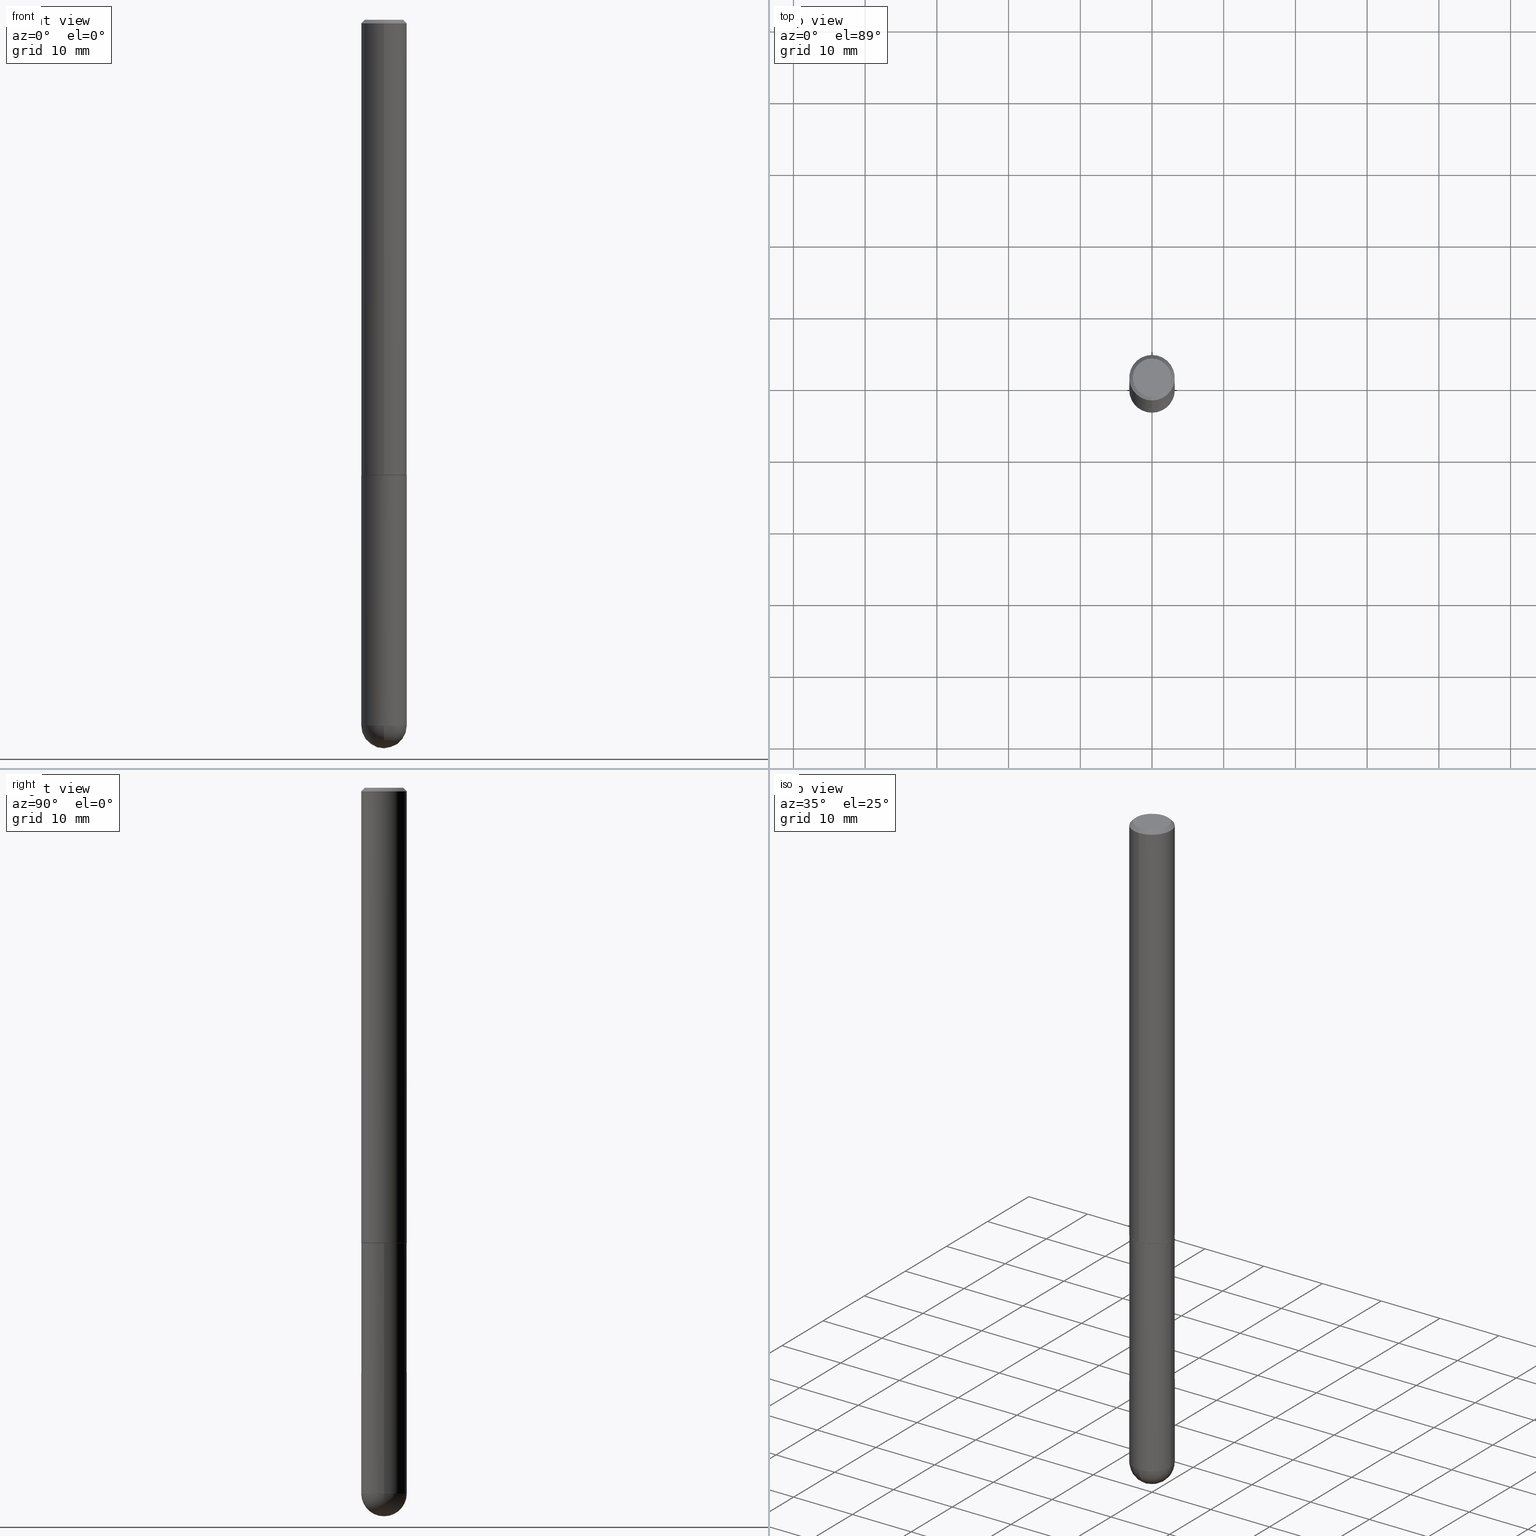
[diagram: canonical four-view strip — front | top / right | iso, engineering-drawing reading convention]
A machine part, canonical four-view strip (front | top / right | iso — engineering-drawing reading convention). The complete STEP part file that produces these views, byte-faithful:
ISO-10303-21;
HEADER;
FILE_DESCRIPTION (( 'STEP AP203' ),
    '1' );
FILE_NAME ('31920.STEP',
    '2024-02-21T17:13:25',
    ( '' ),
    ( '' ),
    'SwSTEP 2.0',
    'SolidWorks 2023',
    '' );
FILE_SCHEMA (( 'CONFIG_CONTROL_DESIGN' ));
ENDSEC;

DATA;
#1 = EDGE_CURVE ( 'NONE', #400, #278, #349, .T. ) ;
#2 = DIRECTION ( 'NONE',  ( 5.024295867789349022E-15, 0.7071067811867310926, 0.7071067811863640529 ) ) ;
#3 = DIRECTION ( 'NONE',  ( 6.982962677686265922E-15, 1.000000000000000000, -4.370956789862814839E-15 ) ) ;
#4 = CARTESIAN_POINT ( 'NONE',  ( 8.846257060213868511E-16, 0.1239999999999912700, -2.500000000000000444 ) ) ;
#5 = AXIS2_PLACEMENT_3D ( 'NONE', #125, #90, #189 ) ;
#6 = DIRECTION ( 'NONE',  ( -2.445237604041377810E-29, 3.491812433472216822E-15, 1.000000000000000000 ) ) ;
#7 = CC_DESIGN_PERSON_AND_ORGANIZATION_ASSIGNMENT ( #341, #151, ( #60 ) ) ;
#8 = CARTESIAN_POINT ( 'NONE',  ( 0.1250000000000000000, -8.728703347107833388E-16, 6.095220969744919741E-30 ) ) ;
#9 = DIRECTION ( 'NONE',  ( 1.000000000000000000, -6.982962677686266711E-15, 4.876176775795935793E-29 ) ) ;
#10 = CIRCLE ( 'NONE', #123, 0.1250000000000000000 ) ;
#11 = LOCAL_TIME ( 12, 13, 25.00000000000000000, #245 ) ;
#12 = CARTESIAN_POINT ( 'NONE',  ( 0.1250000000000000000, -9.601573681818648281E-15, -2.500000000000000000 ) ) ;
#13 = DIRECTION ( 'NONE',  ( -2.445237604041377810E-29, 3.491812433472216822E-15, 1.000000000000000000 ) ) ;
#14 = ADVANCED_FACE ( 'NONE', ( #306 ), #38, .T. ) ;
#15 = EDGE_LOOP ( 'NONE', ( #204, #324, #309, #332 ) ) ;
#16 = CIRCLE ( 'NONE', #329, 0.1250000000000003053 ) ;
#17 = AXIS2_PLACEMENT_3D ( 'NONE', #79, #176, #203 ) ;
#18 = ORIENTED_EDGE ( 'NONE', *, *, #161, .F. ) ;
#19 = LINE ( 'NONE', #86, #285 ) ;
#20 = ORIENTED_EDGE ( 'NONE', *, *, #348, .F. ) ;
#21 = CARTESIAN_POINT ( 'NONE',  ( -8.881784197000325412E-16, -0.1250000000000138500, -3.874999999999999556 ) ) ;
#22 = APPROVAL ( #253, 'UNSPECIFIED' ) ;
#23 = ORIENTED_EDGE ( 'NONE', *, *, #30, .T. ) ;
#24 = AXIS2_PLACEMENT_3D ( 'NONE', #246, #377, #213 ) ;
#25 = APPROVAL_PERSON_ORGANIZATION ( #178, #317, #33 ) ;
#26 = CALENDAR_DATE ( 2024, 21, 2 ) ;
#27 = ORIENTED_EDGE ( 'NONE', *, *, #320, .F. ) ;
#28 = ADVANCED_FACE ( 'NONE', ( #62 ), #52, .T. ) ;
#29 = ORIENTED_EDGE ( 'NONE', *, *, #161, .T. ) ;
#30 = EDGE_CURVE ( 'NONE', #54, #400, #297, .T. ) ;
#31 = DIRECTION ( 'NONE',  ( 1.000000000000000000, -6.982962677686262766E-15, 0.000000000000000000 ) ) ;
#32 = CC_DESIGN_PERSON_AND_ORGANIZATION_ASSIGNMENT ( #142, #267, ( #397 ) ) ;
#33 = APPROVAL_ROLE ( '' ) ;
#34 = CONICAL_SURFACE ( 'NONE', #139, 0.1239999999999999991, 0.7853981633977044075 ) ;
#35 = DIRECTION ( 'NONE',  ( -2.445468806185136597E-29, 3.491481338843145583E-15, 1.000000000000000000 ) ) ;
#36 = APPROVAL_STATUS ( 'not_yet_approved' ) ;
#37 = CARTESIAN_POINT ( 'NONE',  ( 9.456100236134031739E-29, -1.443245368101796326E-14, -4.000000000000000888 ) ) ;
#38 = SPHERICAL_SURFACE ( 'NONE', #99, 0.1250000000000001943 ) ;
#39 = CARTESIAN_POINT ( 'NONE',  ( -8.575622497214408537E-16, -0.1250000000000000555, -0.01999999999999959102 ) ) ;
#40 = CIRCLE ( 'NONE', #173, 0.1250000000000000000 ) ;
#41 = EDGE_CURVE ( 'NONE', #273, #334, #110, .T. ) ;
#42 = LINE ( 'NONE', #39, #402 ) ;
#43 = CARTESIAN_POINT ( 'NONE',  ( 6.113672015462842613E-29, -8.728703347107864943E-15, -2.500000000000000000 ) ) ;
#44 = FACE_OUTER_BOUND ( 'NONE', #98, .T. ) ;
#45 = AXIS2_PLACEMENT_3D ( 'NONE', #338, #35, #127 ) ;
#46 = APPROVAL_PERSON_ORGANIZATION ( #380, #22, #304 ) ;
#47 = CARTESIAN_POINT ( 'NONE',  ( 6.110648772499403782E-29, -8.726039271247070194E-15, -2.499000000000000110 ) ) ;
#48 = DIRECTION ( 'NONE',  ( 2.445237604041377810E-29, -3.491812433472216822E-15, -1.000000000000000000 ) ) ;
#49 = EDGE_LOOP ( 'NONE', ( #210, #370 ) ) ;
#50 = EDGE_CURVE ( 'NONE', #291, #58, #379, .T. ) ;
#51 = ORIENTED_EDGE ( 'NONE', *, *, #315, .F. ) ;
#52 = CONICAL_SURFACE ( 'NONE', #196, 0.1239999999999999991, 0.7853981633977044075 ) ;
#53 =( NAMED_UNIT ( * ) SI_UNIT ( $, .STERADIAN. ) SOLID_ANGLE_UNIT ( ) );
#54 = VERTEX_POINT ( 'NONE', #160 ) ;
#55 = FACE_OUTER_BOUND ( 'NONE', #179, .T. ) ;
#56 = ORIENTED_EDGE ( 'NONE', *, *, #200, .F. ) ;
#57 = DIRECTION ( 'NONE',  ( 2.445237604041377530E-29, -3.491812433472216822E-15, -1.000000000000000000 ) ) ;
#58 = VERTEX_POINT ( 'NONE', #381 ) ;
#59 = CIRCLE ( 'NONE', #231, 0.1250000000000000000 ) ;
#60 = PRODUCT_DEFINITION_FORMATION_WITH_SPECIFIED_SOURCE ( 'ANY', '', #397, .NOT_KNOWN. ) ;
#61 = PERSON_AND_ORGANIZATION_ROLE ( 'creator' ) ;
#62 = FACE_OUTER_BOUND ( 'NONE', #172, .T. ) ;
#63 = DIRECTION ( 'NONE',  ( 2.445237604041377810E-29, -3.491812433472216822E-15, -1.000000000000000000 ) ) ;
#64 = DIMENSIONAL_EXPONENTS ( 1.000000000000000000, 0.000000000000000000, 0.000000000000000000, 0.000000000000000000, 0.000000000000000000, 0.000000000000000000, 0.000000000000000000 ) ;
#65 = PERSON_AND_ORGANIZATION ( #212, #249 ) ;
#66 = DIRECTION ( 'NONE',  ( -6.982962677686265922E-15, -1.000000000000000000, 4.406206441393973340E-15 ) ) ;
#67 = APPROVAL_STATUS ( 'not_yet_approved' ) ;
#68 = AXIS2_PLACEMENT_3D ( 'NONE', #257, #229, #386 ) ;
#69 = CARTESIAN_POINT ( 'NONE',  ( 6.113094010103445506E-29, -8.729531083680542845E-15, -2.500000000000000000 ) ) ;
#70 = LINE ( 'NONE', #372, #387 ) ;
#71 = CARTESIAN_POINT ( 'NONE',  ( 9.145071846053518065E-29, -1.400367255615723938E-14, -3.875000000000000000 ) ) ;
#72 = ADVANCED_FACE ( 'NONE', ( #102 ), #392, .T. ) ;
#73 = CARTESIAN_POINT ( 'NONE',  ( -8.658873720330357934E-16, -0.1240000000000087144, -2.499999999999999556 ) ) ;
#74 = CLOSED_SHELL ( 'NONE', ( #281, #141, #14, #368, #259 ) ) ;
#75 = DIRECTION ( 'NONE',  ( -6.982962677686265922E-15, -1.000000000000000000, 4.370956789862810105E-15 ) ) ;
#76 = LINE ( 'NONE', #73, #235 ) ;
#77 = DIRECTION ( 'NONE',  ( -2.445468806185136877E-29, 3.491481338843145188E-15, 1.000000000000000000 ) ) ;
#78 = AXIS2_PLACEMENT_3D ( 'NONE', #219, #122, #31 ) ;
#79 = CARTESIAN_POINT ( 'NONE',  ( 8.728703347108443769E-16, 0.1249999999999912709, -2.500000000000000444 ) ) ;
#80 = ORIENTED_EDGE ( 'NONE', *, *, #383, .F. ) ;
#81 = CARTESIAN_POINT ( 'NONE',  ( 0.000000000000000000, 0.000000000000000000, 0.000000000000000000 ) ) ;
#82 = EDGE_LOOP ( 'NONE', ( #298, #359, #395, #51, #87 ) ) ;
#83 = VERTEX_POINT ( 'NONE', #37 ) ;
#84 = AXIS2_PLACEMENT_3D ( 'NONE', #190, #310, #279 ) ;
#85 = CC_DESIGN_APPROVAL ( #317, ( #331 ) ) ;
#86 = CARTESIAN_POINT ( 'NONE',  ( 8.881784197001262184E-16, 0.1250000000000001388, -4.364765541840276451E-16 ) ) ;
#87 = ORIENTED_EDGE ( 'NONE', *, *, #311, .T. ) ;
#88 = CARTESIAN_POINT ( 'NONE',  ( 4.890475208082762101E-31, -6.983624866944442273E-17, -0.02000000000000002470 ) ) ;
#89 = EDGE_LOOP ( 'NONE', ( #406, #186, #27, #266 ) ) ;
#90 = DIRECTION ( 'NONE',  ( -2.445468806185136597E-29, 3.491481338843145583E-15, 1.000000000000000000 ) ) ;
#91 = SHAPE_DEFINITION_REPRESENTATION ( #328, #382 ) ;
#92 = EDGE_CURVE ( 'NONE', #58, #143, #187, .T. ) ;
#93 = APPLICATION_CONTEXT ( 'configuration controlled 3d designs of mechanical parts and assemblies' ) ;
#94 = ORIENTED_EDGE ( 'NONE', *, *, #250, .F. ) ;
#95 = PERSON_AND_ORGANIZATION_ROLE ( 'design_supplier' ) ;
#96 = DIRECTION ( 'NONE',  ( -2.445237604041377810E-29, 3.491812433472216822E-15, 1.000000000000000000 ) ) ;
#97 = CALENDAR_DATE ( 2024, 21, 2 ) ;
#98 = EDGE_LOOP ( 'NONE', ( #177, #23, #175, #112, #94 ) ) ;
#99 = AXIS2_PLACEMENT_3D ( 'NONE', #248, #409, #3 ) ;
#100 = APPROVAL_DATE_TIME ( #119, #22 ) ;
#101 = LOCAL_TIME ( 12, 13, 25.00000000000000000, #221 ) ;
#102 = FACE_OUTER_BOUND ( 'NONE', #327, .T. ) ;
#103 = FACE_OUTER_BOUND ( 'NONE', #82, .T. ) ;
#104 = DIRECTION ( 'NONE',  ( -6.982962677686265922E-15, -1.000000000000000000, 4.406206441393973340E-15 ) ) ;
#105 = CYLINDRICAL_SURFACE ( 'NONE', #68, 0.1250000000000000000 ) ;
#106 = CIRCLE ( 'NONE', #280, 0.1050000000000000239 ) ;
#107 = DIRECTION ( 'NONE',  ( -4.851104656540957964E-15, -0.7071067811865491270, -0.7071067811865459074 ) ) ;
#108 = ADVANCED_FACE ( 'NONE', ( #159 ), #157, .T. ) ;
#109 = DIRECTION ( 'NONE',  ( 1.000000000000000000, -6.982962677686270655E-15, 0.000000000000000000 ) ) ;
#110 = CIRCLE ( 'NONE', #5, 0.1250000000000000000 ) ;
#111 = CONICAL_SURFACE ( 'NONE', #237, 0.1250000000000000000, 0.7853981633974471688 ) ;
#112 = ORIENTED_EDGE ( 'NONE', *, *, #315, .T. ) ;
#113 = EDGE_CURVE ( 'NONE', #54, #334, #70, .T. ) ;
#114 = DIRECTION ( 'NONE',  ( 6.982962677686265922E-15, 1.000000000000000000, -3.491812433472216822E-15 ) ) ;
#115 = ORIENTED_EDGE ( 'NONE', *, *, #325, .F. ) ;
#116 = ORIENTED_EDGE ( 'NONE', *, *, #130, .F. ) ;
#117 = DIRECTION ( 'NONE',  ( 0.000000000000000000, 0.000000000000000000, 1.000000000000000000 ) ) ;
#118 = VERTEX_POINT ( 'NONE', #183 ) ;
#119 = DATE_AND_TIME ( #339, #101 ) ;
#120 = DIRECTION ( 'NONE',  ( -2.445237604041377810E-29, 3.491812433472216822E-15, 1.000000000000000000 ) ) ;
#121 = PERSON_AND_ORGANIZATION ( #212, #249 ) ;
#122 = DIRECTION ( 'NONE',  ( -2.445468806185136597E-29, 3.491481338843145583E-15, 1.000000000000000000 ) ) ;
#123 = AXIS2_PLACEMENT_3D ( 'NONE', #43, #169, #109 ) ;
#124 = CARTESIAN_POINT ( 'NONE',  ( 4.890475208082762101E-31, -6.983624866944442273E-17, -0.02000000000000002470 ) ) ;
#125 = CARTESIAN_POINT ( 'NONE',  ( 6.113672015462842613E-29, -8.728703347107864943E-15, -2.500000000000000000 ) ) ;
#126 = EDGE_CURVE ( 'NONE', #272, #118, #168, .T. ) ;
#127 = DIRECTION ( 'NONE',  ( 1.000000000000000000, -6.982962677686262766E-15, 0.000000000000000000 ) ) ;
#128 = CC_DESIGN_SECURITY_CLASSIFICATION ( #331, ( #60 ) ) ;
#129 = CARTESIAN_POINT ( 'NONE',  ( 4.890475208082762101E-31, -6.983624866944442273E-17, -0.02000000000000002470 ) ) ;
#130 = EDGE_CURVE ( 'NONE', #242, #154, #40, .T. ) ;
#131 = CARTESIAN_POINT ( 'NONE',  ( 0.1250000000000000000, -1.200196710227331272E-14, -3.875000000000000000 ) ) ;
#132 = DIRECTION ( 'NONE',  ( -7.105427357601000281E-15, -1.000000000000000000, 0.000000000000000000 ) ) ;
#133 = CARTESIAN_POINT ( 'NONE',  ( -8.575622497214408537E-16, -0.1250000000000000555, -0.01999999999999959102 ) ) ;
#134 = EDGE_CURVE ( 'NONE', #252, #54, #307, .T. ) ;
#135 = CYLINDRICAL_SURFACE ( 'NONE', #255, 0.1250000000000000000 ) ;
#136 = DIRECTION ( 'NONE',  ( 6.982962677686265922E-15, 1.000000000000000000, -3.483106191921935554E-15 ) ) ;
#137 = LENGTH_MEASURE_WITH_UNIT ( LENGTH_MEASURE( 0.02539999999999999897 ), #147 );
#138 = ORIENTED_EDGE ( 'NONE', *, *, #305, .T. ) ;
#139 = AXIS2_PLACEMENT_3D ( 'NONE', #197, #163, #104 ) ;
#140 = CC_DESIGN_APPROVAL ( #22, ( #60 ) ) ;
#141 = ADVANCED_FACE ( 'NONE', ( #302 ), #385, .T. ) ;
#142 = PERSON_AND_ORGANIZATION ( #212, #249 ) ;
#143 = VERTEX_POINT ( 'NONE', #390 ) ;
#144 = CC_DESIGN_DATE_AND_TIME_ASSIGNMENT ( #277, #300, ( #192 ) ) ;
#145 = DIRECTION ( 'NONE',  ( -6.982962677686266711E-15, -1.000000000000000000, 3.491812433472217217E-15 ) ) ;
#146 = ORIENTED_EDGE ( 'NONE', *, *, #41, .T. ) ;
#147 =( LENGTH_UNIT ( ) NAMED_UNIT ( * ) SI_UNIT ( $, .METRE. ) );
#148 = EDGE_LOOP ( 'NONE', ( #20, #222, #170, #18 ) ) ;
#149 = AXIS2_PLACEMENT_3D ( 'NONE', #227, #63, #152 ) ;
#150 = ORIENTED_EDGE ( 'NONE', *, *, #299, .F. ) ;
#151 = PERSON_AND_ORGANIZATION_ROLE ( 'creator' ) ;
#152 = DIRECTION ( 'NONE',  ( 6.982962677686265922E-15, 1.000000000000000000, -3.483106191921935554E-15 ) ) ;
#153 = MANIFOLD_SOLID_BREP ( 'Body-Move/Copy2[2]', #394 ) ;
#154 = VERTEX_POINT ( 'NONE', #165 ) ;
#155 = CIRCLE ( 'NONE', #205, 0.1239999999999999991 ) ;
#156 = APPROVAL_DATE_TIME ( #158, #317 ) ;
#157 = CYLINDRICAL_SURFACE ( 'NONE', #261, 0.1250000000000001388 ) ;
#158 = DATE_AND_TIME ( #296, #376 ) ;
#159 = FACE_OUTER_BOUND ( 'NONE', #148, .T. ) ;
#160 = CARTESIAN_POINT ( 'NONE',  ( -0.1250000000000000000, -1.024091834786240415E-14, -3.875000000000000000 ) ) ;
#161 = EDGE_CURVE ( 'NONE', #154, #242, #276, .T. ) ;
#162 = VECTOR ( 'NONE', #77, 39.37007874015748143 ) ;
#163 = DIRECTION ( 'NONE',  ( -2.445237604041377810E-29, 3.491812433472216822E-15, 1.000000000000000000 ) ) ;
#164 = FACE_OUTER_BOUND ( 'NONE', #89, .T. ) ;
#165 = CARTESIAN_POINT ( 'NONE',  ( 8.728703347107837333E-16, 0.1249999999999999306, -0.02000000000000046185 ) ) ;
#166 = MANIFOLD_SOLID_BREP ( 'Body-Move/Copy2[1]', #74 ) ;
#167 = DIRECTION ( 'NONE',  ( -1.000000000000000000, 6.982962677686265922E-15, -4.883557194083112901E-29 ) ) ;
#168 = CIRCLE ( 'NONE', #84, 0.1050000000000000239 ) ;
#169 = DIRECTION ( 'NONE',  ( -2.445468806185136597E-29, 3.491481338843145583E-15, 1.000000000000000000 ) ) ;
#170 = ORIENTED_EDGE ( 'NONE', *, *, #383, .T. ) ;
#171 = FACE_OUTER_BOUND ( 'NONE', #241, .T. ) ;
#172 = EDGE_LOOP ( 'NONE', ( #270, #293, #138, #337 ) ) ;
#173 = AXIS2_PLACEMENT_3D ( 'NONE', #124, #120, #274 ) ;
#174 = FACE_OUTER_BOUND ( 'NONE', #268, .T. ) ;
#175 = ORIENTED_EDGE ( 'NONE', *, *, #1, .T. ) ;
#176 = DIRECTION ( 'NONE',  ( 2.438088387897960049E-29, -3.491481338843145188E-15, -1.000000000000000000 ) ) ;
#177 = ORIENTED_EDGE ( 'NONE', *, *, #113, .F. ) ;
#178 = PERSON_AND_ORGANIZATION ( #212, #249 ) ;
#179 = EDGE_LOOP ( 'NONE', ( #146, #202 ) ) ;
#180 = AXIS2_PLACEMENT_3D ( 'NONE', #322, #6, #347 ) ;
#181 = AXIS2_PLACEMENT_3D ( 'NONE', #396, #13, #145 ) ;
#182 = APPLICATION_PROTOCOL_DEFINITION ( 'international standard', 'config_control_design', 1994, #93 ) ;
#183 = CARTESIAN_POINT ( 'NONE',  ( -7.889572697437259167E-16, -0.1050000000000000239, 3.624065579605349599E-16 ) ) ;
#184 = DIRECTION ( 'NONE',  ( -6.982962677686265922E-15, -1.000000000000000000, 4.370956789862810105E-15 ) ) ;
#185 = COORDINATED_UNIVERSAL_TIME_OFFSET ( 5, 0, .BEHIND. ) ;
#186 = ORIENTED_EDGE ( 'NONE', *, *, #50, .T. ) ;
#187 = CIRCLE ( 'NONE', #214, 0.1250000000000003053 ) ;
#188 = DATE_AND_TIME ( #216, #206 ) ;
#189 = DIRECTION ( 'NONE',  ( 1.000000000000000000, -6.982962677686270655E-15, 0.000000000000000000 ) ) ;
#190 = CARTESIAN_POINT ( 'NONE',  ( 1.035251872517619265E-46, -1.478345234940713000E-32, -4.233747554047924360E-18 ) ) ;
#191 = DIRECTION ( 'NONE',  ( -2.445237604041377530E-29, 3.491812433472216822E-15, 1.000000000000000000 ) ) ;
#192 = PRODUCT_DEFINITION ( 'UNKNOWN', '', #60, #211 ) ;
#193 = CARTESIAN_POINT ( 'NONE',  ( 1.035251872517619265E-46, -1.478345234940713000E-32, -4.233747554047924360E-18 ) ) ;
#194 = CARTESIAN_POINT ( 'NONE',  ( 6.113094010103445506E-29, -8.729531083680542845E-15, -2.500000000000000000 ) ) ;
#195 = DIRECTION ( 'NONE',  ( -4.937700262165812586E-15, -0.7071067811867262076, 0.7071067811863689379 ) ) ;
#196 = AXIS2_PLACEMENT_3D ( 'NONE', #69, #251, #66 ) ;
#197 = CARTESIAN_POINT ( 'NONE',  ( 6.113094010103445506E-29, -8.729531083680542845E-15, -2.500000000000000000 ) ) ;
#198 = LOCAL_TIME ( 12, 13, 25.00000000000000000, #405 ) ;
#199 = PLANE ( 'NONE',  #313 ) ;
#200 = EDGE_CURVE ( 'NONE', #118, #272, #106, .T. ) ;
#201 = DIRECTION ( 'NONE',  ( 1.000000000000000000, 0.000000000000000000, 0.000000000000000000 ) ) ;
#202 = ORIENTED_EDGE ( 'NONE', *, *, #250, .T. ) ;
#203 = DIRECTION ( 'NONE',  ( -1.000000000000000000, 6.982962677686265922E-15, -4.876176775795935793E-29 ) ) ;
#204 = ORIENTED_EDGE ( 'NONE', *, *, #316, .F. ) ;
#205 = AXIS2_PLACEMENT_3D ( 'NONE', #194, #364, #326 ) ;
#206 = LOCAL_TIME ( 12, 13, 25.00000000000000000, #185 ) ;
#207 = CARTESIAN_POINT ( 'NONE',  ( 8.728703347107837333E-16, 0.1249999999999999306, -0.02000000000000046185 ) ) ;
#208 = EDGE_LOOP ( 'NONE', ( #240, #375, #398, #404 ) ) ;
#209 = DIRECTION ( 'NONE',  ( 6.982962677686265133E-15, 1.000000000000000000, 0.000000000000000000 ) ) ;
#210 = ORIENTED_EDGE ( 'NONE', *, *, #126, .T. ) ;
#211 = DESIGN_CONTEXT ( 'detailed design', #93, 'design' ) ;
#212 = PERSON ( 'UNSPECIFIED', 'UNSPECIFIED', 'UNSPECIFIED', ('UNSPECIFIED'), ('UNSPECIFIED'), ('UNSPECIFIED') ) ;
#213 = DIRECTION ( 'NONE',  ( 1.000000000000000000, -6.982962677686262766E-15, 0.000000000000000000 ) ) ;
#214 = AXIS2_PLACEMENT_3D ( 'NONE', #340, #96, #184 ) ;
#215 =( GEOMETRIC_REPRESENTATION_CONTEXT ( 3 ) GLOBAL_UNCERTAINTY_ASSIGNED_CONTEXT ( ( #218 ) ) GLOBAL_UNIT_ASSIGNED_CONTEXT ( ( #399, #271, #53 ) ) REPRESENTATION_CONTEXT ( 'NONE', 'WORKASPACE' ) );
#216 = CALENDAR_DATE ( 2024, 21, 2 ) ;
#217 = ORIENTED_EDGE ( 'NONE', *, *, #238, .T. ) ;
#218 = UNCERTAINTY_MEASURE_WITH_UNIT (LENGTH_MEASURE( 1.000000000000000082E-05 ), #399, 'distance_accuracy_value', 'NONE');
#219 = CARTESIAN_POINT ( 'NONE',  ( 9.476191623967404313E-29, -1.352949018801718908E-14, -3.875000000000000000 ) ) ;
#220 = CC_DESIGN_PERSON_AND_ORGANIZATION_ASSIGNMENT ( #378, #61, ( #192 ) ) ;
#221 = COORDINATED_UNIVERSAL_TIME_OFFSET ( 5, 0, .BEHIND. ) ;
#222 = ORIENTED_EDGE ( 'NONE', *, *, #92, .T. ) ;
#223 = VECTOR ( 'NONE', #333, 39.37007874015748143 ) ;
#224 = AXIS2_PLACEMENT_3D ( 'NONE', #236, #287, #209 ) ;
#225 = AXIS2_PLACEMENT_3D ( 'NONE', #81, #117, #201 ) ;
#226 = APPROVAL_DATE_TIME ( #188, #362 ) ;
#227 = CARTESIAN_POINT ( 'NONE',  ( 4.890475208082762101E-31, -6.983624866944442273E-17, -0.02000000000000002470 ) ) ;
#228 = FACE_OUTER_BOUND ( 'NONE', #336, .T. ) ;
#229 = DIRECTION ( 'NONE',  ( -2.445468806185136597E-29, 3.491481338843145583E-15, 1.000000000000000000 ) ) ;
#230 = ADVANCED_FACE ( 'NONE', ( #228 ), #346, .F. ) ;
#231 = AXIS2_PLACEMENT_3D ( 'NONE', #283, #321, #384 ) ;
#232 = CARTESIAN_POINT ( 'NONE',  ( 9.145071846053518065E-29, -1.400367255615723938E-14, -3.875000000000000000 ) ) ;
#233 = CARTESIAN_POINT ( 'NONE',  ( 8.728703347108770161E-16, 0.1249999999999863443, -3.875000000000000444 ) ) ;
#234 = DIRECTION ( 'NONE',  ( -2.445468806185136597E-29, 3.491481338843145583E-15, 1.000000000000000000 ) ) ;
#235 = VECTOR ( 'NONE', #195, 39.37007874015748143 ) ;
#236 = CARTESIAN_POINT ( 'NONE',  ( 9.145071846053518065E-29, -1.400367255615723938E-14, -3.875000000000000000 ) ) ;
#237 = AXIS2_PLACEMENT_3D ( 'NONE', #88, #48, #136 ) ;
#238 = EDGE_CURVE ( 'NONE', #118, #242, #42, .T. ) ;
#239 = ORIENTED_EDGE ( 'NONE', *, *, #126, .F. ) ;
#240 = ORIENTED_EDGE ( 'NONE', *, *, #351, .F. ) ;
#241 = EDGE_LOOP ( 'NONE', ( #56, #217, #357, #289 ) ) ;
#242 = VERTEX_POINT ( 'NONE', #133 ) ;
#243 = CIRCLE ( 'NONE', #264, 0.1250000000000001943 ) ;
#244 = ORIENTED_EDGE ( 'NONE', *, *, #238, .F. ) ;
#245 = COORDINATED_UNIVERSAL_TIME_OFFSET ( 5, 0, .BEHIND. ) ;
#246 = CARTESIAN_POINT ( 'NONE',  ( 9.476191623967404313E-29, -1.352949018801718908E-14, -3.875000000000000000 ) ) ;
#247 = APPROVAL_ROLE ( '' ) ;
#248 = CARTESIAN_POINT ( 'NONE',  ( 9.145071846053518065E-29, -1.400367255615723938E-14, -3.875000000000000000 ) ) ;
#249 = ORGANIZATION ( 'UNSPECIFIED', 'UNSPECIFIED', '' ) ;
#250 = EDGE_CURVE ( 'NONE', #334, #273, #10, .T. ) ;
#251 = DIRECTION ( 'NONE',  ( -2.445237604041377810E-29, 3.491812433472216822E-15, 1.000000000000000000 ) ) ;
#252 = VERTEX_POINT ( 'NONE', #233 ) ;
#253 = APPROVAL_STATUS ( 'not_yet_approved' ) ;
#254 = CARTESIAN_POINT ( 'NONE',  ( 8.810729923425852623E-16, 0.1239999999999912700, -2.500000000000000444 ) ) ;
#255 = AXIS2_PLACEMENT_3D ( 'NONE', #282, #234, #9 ) ;
#256 = CARTESIAN_POINT ( 'NONE',  ( 6.113094010103445506E-29, -8.729531083680542845E-15, -2.500000000000000000 ) ) ;
#257 = CARTESIAN_POINT ( 'NONE',  ( 0.000000000000000000, 0.000000000000000000, 0.000000000000000000 ) ) ;
#258 = ADVANCED_FACE ( 'NONE', ( #164 ), #34, .T. ) ;
#259 = ADVANCED_FACE ( 'NONE', ( #44 ), #105, .T. ) ;
#260 = DIRECTION ( 'NONE',  ( -2.445237604041377810E-29, 3.491812433472216822E-15, 1.000000000000000000 ) ) ;
#261 = AXIS2_PLACEMENT_3D ( 'NONE', #303, #275, #345 ) ;
#262 = CARTESIAN_POINT ( 'NONE',  ( -8.658873720330357934E-16, -0.1240000000000087144, -2.499999999999999556 ) ) ;
#263 = CARTESIAN_POINT ( 'NONE',  ( 7.332110811570580243E-16, 0.1050000000000000239, -3.687571792916068175E-16 ) ) ;
#264 = AXIS2_PLACEMENT_3D ( 'NONE', #232, #350, #132 ) ;
#265 = PLANE ( 'NONE',  #17 ) ;
#266 = ORIENTED_EDGE ( 'NONE', *, *, #305, .F. ) ;
#267 = PERSON_AND_ORGANIZATION_ROLE ( 'design_owner' ) ;
#268 = EDGE_LOOP ( 'NONE', ( #366, #342, #116, #80 ) ) ;
#269 = FACE_OUTER_BOUND ( 'NONE', #49, .T. ) ;
#270 = ORIENTED_EDGE ( 'NONE', *, *, #50, .F. ) ;
#271 =( NAMED_UNIT ( * ) PLANE_ANGLE_UNIT ( ) SI_UNIT ( $, .RADIAN. ) );
#272 = VERTEX_POINT ( 'NONE', #284 ) ;
#273 = VERTEX_POINT ( 'NONE', #12 ) ;
#274 = DIRECTION ( 'NONE',  ( -6.982962677686265922E-15, -1.000000000000000000, 3.483106191921935554E-15 ) ) ;
#275 = DIRECTION ( 'NONE',  ( -2.445237604041377810E-29, 3.491812433472216822E-15, 1.000000000000000000 ) ) ;
#276 = CIRCLE ( 'NONE', #410, 0.1250000000000000000 ) ;
#277 = DATE_AND_TIME ( #97, #198 ) ;
#278 = VERTEX_POINT ( 'NONE', #131 ) ;
#279 = DIRECTION ( 'NONE',  ( -6.982962677686265133E-15, -1.000000000000000000, 3.491812433472216822E-15 ) ) ;
#280 = AXIS2_PLACEMENT_3D ( 'NONE', #193, #352, #286 ) ;
#281 = ADVANCED_FACE ( 'NONE', ( #103 ), #135, .T. ) ;
#282 = CARTESIAN_POINT ( 'NONE',  ( 0.000000000000000000, 0.000000000000000000, 0.000000000000000000 ) ) ;
#283 = CARTESIAN_POINT ( 'NONE',  ( 9.476191623967404313E-29, -1.352949018801718908E-14, -3.875000000000000000 ) ) ;
#284 = CARTESIAN_POINT ( 'NONE',  ( 8.030407079339208295E-16, 0.1050000000000000239, -3.708740530686307701E-16 ) ) ;
#285 = VECTOR ( 'NONE', #355, 39.37007874015748143 ) ;
#286 = DIRECTION ( 'NONE',  ( -6.982962677686265133E-15, -1.000000000000000000, 3.491812433472216822E-15 ) ) ;
#287 = DIRECTION ( 'NONE',  ( 1.000000000000000000, -6.982962677686265922E-15, 4.883557194083112340E-29 ) ) ;
#288 = LINE ( 'NONE', #207, #223 ) ;
#289 = ORIENTED_EDGE ( 'NONE', *, *, #358, .F. ) ;
#290 = VECTOR ( 'NONE', #2, 39.37007874015748143 ) ;
#291 = VERTEX_POINT ( 'NONE', #4 ) ;
#292 = CYLINDRICAL_SURFACE ( 'NONE', #181, 0.1250000000000001388 ) ;
#293 = ORIENTED_EDGE ( 'NONE', *, *, #299, .T. ) ;
#294 = DIRECTION ( 'NONE',  ( -2.445237604041377530E-29, 3.491812433472216822E-15, 1.000000000000000000 ) ) ;
#295 = VERTEX_POINT ( 'NONE', #262 ) ;
#296 = CALENDAR_DATE ( 2024, 21, 2 ) ;
#297 = CIRCLE ( 'NONE', #45, 0.1250000000000000000 ) ;
#298 = ORIENTED_EDGE ( 'NONE', *, *, #134, .T. ) ;
#299 = EDGE_CURVE ( 'NONE', #291, #295, #354, .T. ) ;
#300 = DATE_TIME_ROLE ( 'creation_date' ) ;
#301 = APPLICATION_CONTEXT ( 'configuration controlled 3d designs of mechanical parts and assemblies' ) ;
#302 = FACE_OUTER_BOUND ( 'NONE', #208, .T. ) ;
#303 = CARTESIAN_POINT ( 'NONE',  ( 0.000000000000000000, 0.000000000000000000, 0.000000000000000000 ) ) ;
#304 = APPROVAL_ROLE ( '' ) ;
#305 = EDGE_CURVE ( 'NONE', #295, #143, #76, .T. ) ;
#306 = FACE_OUTER_BOUND ( 'NONE', #15, .T. ) ;
#307 = CIRCLE ( 'NONE', #24, 0.1250000000000000000 ) ;
#308 = SECURITY_CLASSIFICATION_LEVEL ( 'unclassified' ) ;
#309 = ORIENTED_EDGE ( 'NONE', *, *, #311, .F. ) ;
#310 = DIRECTION ( 'NONE',  ( -2.445237604041377810E-29, 3.491812433472216822E-15, 1.000000000000000000 ) ) ;
#311 = EDGE_CURVE ( 'NONE', #278, #252, #59, .T. ) ;
#312 = DIRECTION ( 'NONE',  ( -2.445237604041377810E-29, 3.491812433472216822E-15, 1.000000000000000000 ) ) ;
#313 = AXIS2_PLACEMENT_3D ( 'NONE', #263, #57, #114 ) ;
#314 = DIRECTION ( 'NONE',  ( -6.982962677686265922E-15, -1.000000000000000000, 3.483106191921935554E-15 ) ) ;
#315 = EDGE_CURVE ( 'NONE', #278, #273, #353, .T. ) ;
#316 = EDGE_CURVE ( 'NONE', #83, #400, #243, .T. ) ;
#317 = APPROVAL ( #36, 'UNSPECIFIED' ) ;
#318 = DIRECTION ( 'NONE',  ( 6.982962677686265922E-15, 1.000000000000000000, -4.370956789862814839E-15 ) ) ;
#319 = CC_DESIGN_PERSON_AND_ORGANIZATION_ASSIGNMENT ( #65, #95, ( #60 ) ) ;
#320 = EDGE_CURVE ( 'NONE', #143, #58, #16, .T. ) ;
#321 = DIRECTION ( 'NONE',  ( -2.445468806185136597E-29, 3.491481338843145583E-15, 1.000000000000000000 ) ) ;
#322 = CARTESIAN_POINT ( 'NONE',  ( 6.113094010103445506E-29, -8.729531083680542845E-15, -2.500000000000000000 ) ) ;
#323 = CARTESIAN_POINT ( 'NONE',  ( -8.728703347107843249E-16, -0.1250000000000001388, 4.364765541840276451E-16 ) ) ;
#324 = ORIENTED_EDGE ( 'NONE', *, *, #351, .T. ) ;
#325 = EDGE_CURVE ( 'NONE', #295, #291, #155, .T. ) ;
#326 = DIRECTION ( 'NONE',  ( -6.982962677686265922E-15, -1.000000000000000000, 4.406206441393973340E-15 ) ) ;
#327 = EDGE_LOOP ( 'NONE', ( #244, #239, #361, #29 ) ) ;
#328 = PRODUCT_DEFINITION_SHAPE ( 'NONE', 'NONE',  #192 ) ;
#329 = AXIS2_PLACEMENT_3D ( 'NONE', #47, #260, #75 ) ;
#330 = APPLICATION_PROTOCOL_DEFINITION ( 'international standard', 'config_control_design', 1994, #301 ) ;
#331 = SECURITY_CLASSIFICATION ( '', '', #308 ) ;
#332 = ORIENTED_EDGE ( 'NONE', *, *, #1, .F. ) ;
#333 = DIRECTION ( 'NONE',  ( 4.937700262164541731E-15, 0.7071067811865442421, -0.7071067811865507924 ) ) ;
#334 = VERTEX_POINT ( 'NONE', #335 ) ;
#335 = CARTESIAN_POINT ( 'NONE',  ( -0.1250000000000000000, -1.024091834786240099E-14, -2.500000000000000000 ) ) ;
#336 = EDGE_LOOP ( 'NONE', ( #115, #150 ) ) ;
#337 = ORIENTED_EDGE ( 'NONE', *, *, #92, .F. ) ;
#338 = CARTESIAN_POINT ( 'NONE',  ( 9.476191623967404313E-29, -1.352949018801718908E-14, -3.875000000000000000 ) ) ;
#339 = CALENDAR_DATE ( 2024, 21, 2 ) ;
#340 = CARTESIAN_POINT ( 'NONE',  ( 6.110648772499403782E-29, -8.726039271247070194E-15, -2.499000000000000110 ) ) ;
#341 = PERSON_AND_ORGANIZATION ( #212, #249 ) ;
#342 = ORIENTED_EDGE ( 'NONE', *, *, #348, .T. ) ;
#343 = CC_DESIGN_DATE_AND_TIME_ASSIGNMENT ( #373, #371, ( #331 ) ) ;
#344 = COORDINATED_UNIVERSAL_TIME_OFFSET ( 5, 0, .BEHIND. ) ;
#345 = DIRECTION ( 'NONE',  ( -6.982962677686266711E-15, -1.000000000000000000, 3.491812433472217217E-15 ) ) ;
#346 = PLANE ( 'NONE',  #363 ) ;
#347 = DIRECTION ( 'NONE',  ( -6.982962677686265922E-15, -1.000000000000000000, 4.406206441393973340E-15 ) ) ;
#348 = EDGE_CURVE ( 'NONE', #58, #154, #19, .T. ) ;
#349 = CIRCLE ( 'NONE', #78, 0.1250000000000000000 ) ;
#350 = DIRECTION ( 'NONE',  ( -1.000000000000000000, 7.105427357601001070E-15, -4.926315508542082329E-29 ) ) ;
#351 = EDGE_CURVE ( 'NONE', #83, #252, #403, .T. ) ;
#352 = DIRECTION ( 'NONE',  ( -2.445237604041377810E-29, 3.491812433472216822E-15, 1.000000000000000000 ) ) ;
#353 = LINE ( 'NONE', #8, #162 ) ;
#354 = CIRCLE ( 'NONE', #180, 0.1239999999999999991 ) ;
#355 = DIRECTION ( 'NONE',  ( -2.445237604041377530E-29, 3.491812433472216822E-15, 1.000000000000000000 ) ) ;
#356 = PRODUCT_RELATED_PRODUCT_CATEGORY ( 'detail', '', ( #397 ) ) ;
#357 = ORIENTED_EDGE ( 'NONE', *, *, #130, .T. ) ;
#358 = EDGE_CURVE ( 'NONE', #272, #154, #288, .T. ) ;
#359 = ORIENTED_EDGE ( 'NONE', *, *, #113, .T. ) ;
#360 = LINE ( 'NONE', #323, #388 ) ;
#361 = ORIENTED_EDGE ( 'NONE', *, *, #358, .T. ) ;
#362 = APPROVAL ( #67, 'UNSPECIFIED' ) ;
#363 = AXIS2_PLACEMENT_3D ( 'NONE', #256, #191, #389 ) ;
#364 = DIRECTION ( 'NONE',  ( -2.445237604041377810E-29, 3.491812433472216822E-15, 1.000000000000000000 ) ) ;
#365 = CC_DESIGN_APPROVAL ( #362, ( #192 ) ) ;
#366 = ORIENTED_EDGE ( 'NONE', *, *, #320, .T. ) ;
#367 = CC_DESIGN_PERSON_AND_ORGANIZATION_ASSIGNMENT ( #407, #412, ( #331 ) ) ;
#368 = ADVANCED_FACE ( 'NONE', ( #55 ), #265, .F. ) ;
#369 = MECHANICAL_CONTEXT ( 'NONE', #301, 'mechanical' ) ;
#370 = ORIENTED_EDGE ( 'NONE', *, *, #200, .T. ) ;
#371 = DATE_TIME_ROLE ( 'classification_date' ) ;
#372 = CARTESIAN_POINT ( 'NONE',  ( -0.1250000000000000000, 8.881784197001252323E-16, -6.148668862818632227E-30 ) ) ;
#373 = DATE_AND_TIME ( #26, #11 ) ;
#374 = AXIS2_PLACEMENT_3D ( 'NONE', #71, #167, #318 ) ;
#375 = ORIENTED_EDGE ( 'NONE', *, *, #316, .T. ) ;
#376 = LOCAL_TIME ( 12, 13, 25.00000000000000000, #344 ) ;
#377 = DIRECTION ( 'NONE',  ( -2.445468806185136597E-29, 3.491481338843145583E-15, 1.000000000000000000 ) ) ;
#378 = PERSON_AND_ORGANIZATION ( #212, #249 ) ;
#379 = LINE ( 'NONE', #254, #290 ) ;
#380 = PERSON_AND_ORGANIZATION ( #212, #249 ) ;
#381 = CARTESIAN_POINT ( 'NONE',  ( 8.881784197001575756E-16, 0.1249999999999915762, -2.499000000000000998 ) ) ;
#382 = ADVANCED_BREP_SHAPE_REPRESENTATION ( '31920', ( #166, #153, #225 ), #215 ) ;
#383 = EDGE_CURVE ( 'NONE', #143, #242, #360, .T. ) ;
#384 = DIRECTION ( 'NONE',  ( 1.000000000000000000, -6.982962677686262766E-15, 0.000000000000000000 ) ) ;
#385 = SPHERICAL_SURFACE ( 'NONE', #374, 0.1250000000000001943 ) ;
#386 = DIRECTION ( 'NONE',  ( 1.000000000000000000, -6.982962677686266711E-15, 4.876176775795935793E-29 ) ) ;
#387 = VECTOR ( 'NONE', #411, 39.37007874015748143 ) ;
#388 = VECTOR ( 'NONE', #294, 39.37007874015748143 ) ;
#389 = DIRECTION ( 'NONE',  ( -6.982962677686265922E-15, -1.000000000000000000, 3.491812433472216822E-15 ) ) ;
#390 = CARTESIAN_POINT ( 'NONE',  ( -8.728703347107242729E-16, -0.1250000000000090206, -2.498999999999999666 ) ) ;
#391 = ADVANCED_FACE ( 'NONE', ( #174 ), #292, .T. ) ;
#392 = CONICAL_SURFACE ( 'NONE', #149, 0.1250000000000000000, 0.7853981633974471688 ) ;
#393 = APPROVAL_PERSON_ORGANIZATION ( #121, #362, #247 ) ;
#394 = CLOSED_SHELL ( 'NONE', ( #258, #391, #401, #72, #108, #28, #230, #408 ) ) ;
#395 = ORIENTED_EDGE ( 'NONE', *, *, #41, .F. ) ;
#396 = CARTESIAN_POINT ( 'NONE',  ( 0.000000000000000000, 0.000000000000000000, 0.000000000000000000 ) ) ;
#397 = PRODUCT ( '31920', '31920', '', ( #369 ) ) ;
#398 = ORIENTED_EDGE ( 'NONE', *, *, #30, .F. ) ;
#399 =( CONVERSION_BASED_UNIT ( 'INCH', #137 ) LENGTH_UNIT ( ) NAMED_UNIT ( #64 ) );
#400 = VERTEX_POINT ( 'NONE', #21 ) ;
#401 = ADVANCED_FACE ( 'NONE', ( #171 ), #111, .T. ) ;
#402 = VECTOR ( 'NONE', #107, 39.37007874015748143 ) ;
#403 = CIRCLE ( 'NONE', #224, 0.1250000000000001943 ) ;
#404 = ORIENTED_EDGE ( 'NONE', *, *, #134, .F. ) ;
#405 = COORDINATED_UNIVERSAL_TIME_OFFSET ( 5, 0, .BEHIND. ) ;
#406 = ORIENTED_EDGE ( 'NONE', *, *, #325, .T. ) ;
#407 = PERSON_AND_ORGANIZATION ( #212, #249 ) ;
#408 = ADVANCED_FACE ( 'NONE', ( #269 ), #199, .F. ) ;
#409 = DIRECTION ( 'NONE',  ( -1.000000000000000000, 6.982962677686265922E-15, -4.883557194083112901E-29 ) ) ;
#410 = AXIS2_PLACEMENT_3D ( 'NONE', #129, #312, #314 ) ;
#411 = DIRECTION ( 'NONE',  ( -2.445468806185136877E-29, 3.491481338843145188E-15, 1.000000000000000000 ) ) ;
#412 = PERSON_AND_ORGANIZATION_ROLE ( 'classification_officer' ) ;
ENDSEC;
END-ISO-10303-21;
